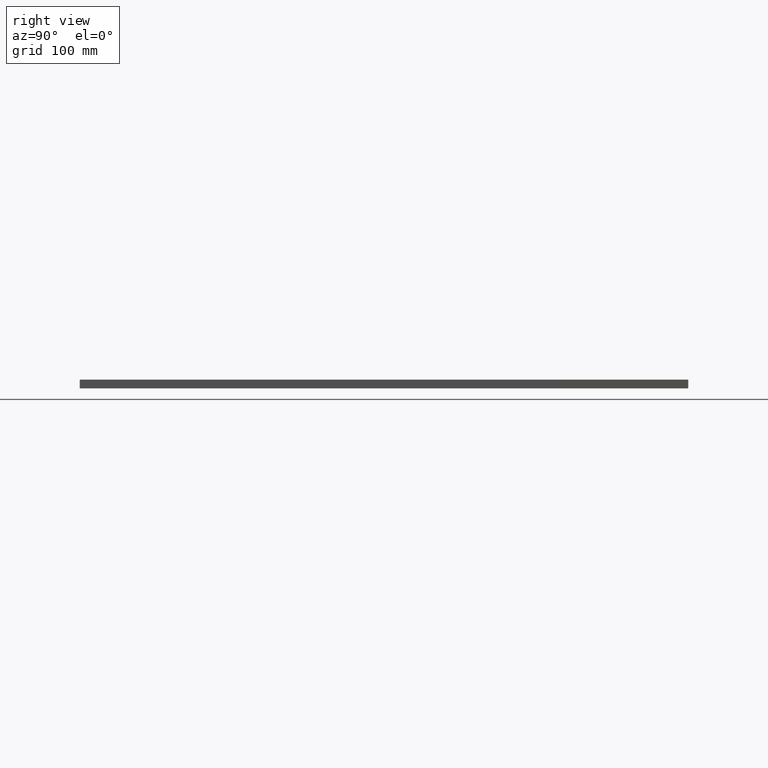
[diagram: clean part render]
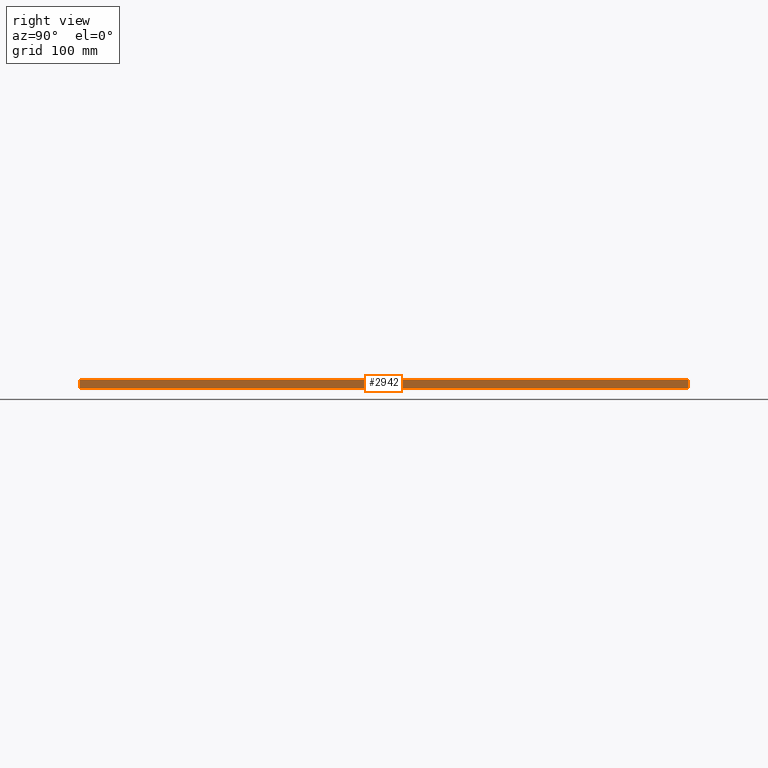
[diagram: same view with one face highlighted and labeled with its STEP entity id]
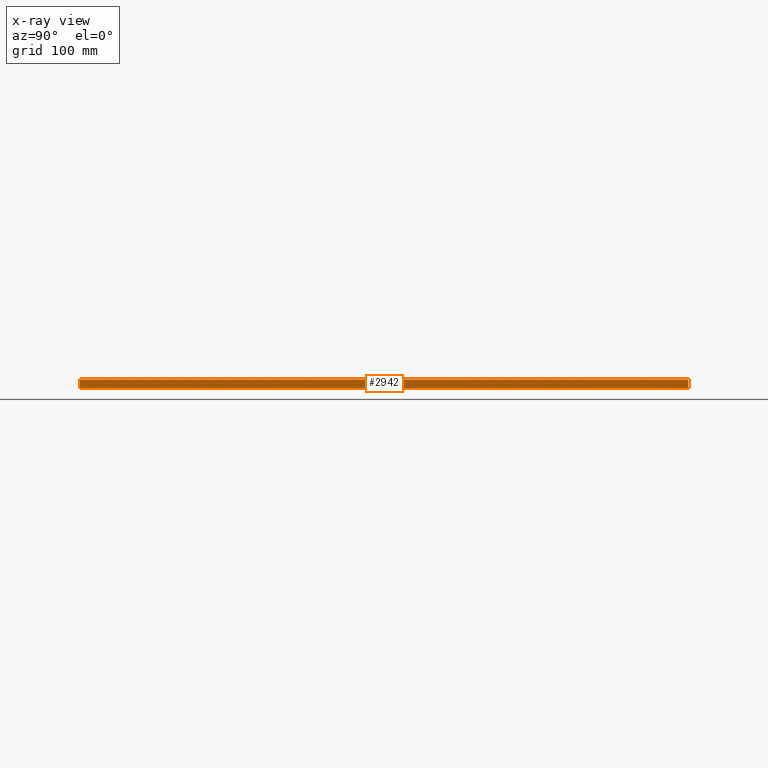
[diagram: x-ray of the same camera — body ghosted, the highlighted face saturated]
A machine part, right view. The second image highlights one B-rep face of the part: STEP entity #2942.
The next image is the same camera in x-ray: the body ghosted, the highlighted face saturated — about 0% of this face is hidden behind the body in this view.
In plain terms, the highlighted planar face has unit normal (-1, -0, 0).
Its self-contained STEP definition (entity closure, byte-faithful):
#1243 = ORIENTED_EDGE ( 'NONE', *, *, #53300, .T. ) ;
#2942 = ADVANCED_FACE ( 'NONE', ( #42168 ), #12495, .F. ) ;
#3609 = VECTOR ( 'NONE', #39229, 1000.000000000000000 ) ;
#3951 = CARTESIAN_POINT ( 'NONE',  ( 299.9999999999999400, 449.9999999999999400, 13.00000000000000000 ) ) ;
#4668 = VERTEX_POINT ( 'NONE', #23210 ) ;
#7494 = ORIENTED_EDGE ( 'NONE', *, *, #11601, .F. ) ;
#7677 = CARTESIAN_POINT ( 'NONE',  ( 299.9999999999999400, 449.9999999999999400, 13.00000000000000000 ) ) ;
#9300 = CARTESIAN_POINT ( 'NONE',  ( 299.9999999999999400, 449.9999999999999400, 0.0000000000000000000 ) ) ;
#9301 = EDGE_LOOP ( 'NONE', ( #47822, #7494, #21062, #1243 ) ) ;
#11601 = EDGE_CURVE ( 'NONE', #23273, #4668, #54887, .T. ) ;
#11738 = DIRECTION ( 'NONE',  ( -0.0000000000000000000, -0.0000000000000000000, -1.000000000000000000 ) ) ;
#11766 = CARTESIAN_POINT ( 'NONE',  ( 300.0000000000001100, -450.0000000000000600, 13.00000000000000000 ) ) ;
#12495 = PLANE ( 'NONE',  #35130 ) ;
#15003 = LINE ( 'NONE', #9300, #3609 ) ;
#16034 = EDGE_CURVE ( 'NONE', #26434, #23273, #18830, .T. ) ;
#18830 = LINE ( 'NONE', #7677, #48890 ) ;
#21062 = ORIENTED_EDGE ( 'NONE', *, *, #16034, .F. ) ;
#21124 = DIRECTION ( 'NONE',  ( -1.000000000000000000, -1.850371707708594800E-016, 0.0000000000000000000 ) ) ;
#23210 = CARTESIAN_POINT ( 'NONE',  ( 299.9999999999999400, 449.9999999999999400, 0.0000000000000000000 ) ) ;
#23273 = VERTEX_POINT ( 'NONE', #25400 ) ;
#25400 = CARTESIAN_POINT ( 'NONE',  ( 299.9999999999999400, 449.9999999999999400, 13.00000000000000000 ) ) ;
#25473 = EDGE_CURVE ( 'NONE', #54901, #4668, #15003, .T. ) ;
#26434 = VERTEX_POINT ( 'NONE', #11766 ) ;
#32813 = VECTOR ( 'NONE', #11738, 1000.000000000000000 ) ;
#33301 = DIRECTION ( 'NONE',  ( -1.850371707708594300E-016, 1.000000000000000000, -0.0000000000000000000 ) ) ;
#35130 = AXIS2_PLACEMENT_3D ( 'NONE', #46702, #21124, #51010 ) ;
#39229 = DIRECTION ( 'NONE',  ( -1.850371707708594300E-016, 1.000000000000000000, -0.0000000000000000000 ) ) ;
#41665 = CARTESIAN_POINT ( 'NONE',  ( 300.0000000000001100, -450.0000000000000600, 13.00000000000000000 ) ) ;
#42168 = FACE_OUTER_BOUND ( 'NONE', #9301, .T. ) ;
#42875 = LINE ( 'NONE', #41665, #32813 ) ;
#43467 = VECTOR ( 'NONE', #51062, 1000.000000000000000 ) ;
#46702 = CARTESIAN_POINT ( 'NONE',  ( 299.9999999999999400, 449.9999999999999400, 13.00000000000000000 ) ) ;
#47822 = ORIENTED_EDGE ( 'NONE', *, *, #25473, .T. ) ;
#48890 = VECTOR ( 'NONE', #33301, 1000.000000000000000 ) ;
#49121 = CARTESIAN_POINT ( 'NONE',  ( 300.0000000000001100, -450.0000000000000600, 0.0000000000000000000 ) ) ;
#51010 = DIRECTION ( 'NONE',  ( 1.850371707708594800E-016, -1.000000000000000000, 0.0000000000000000000 ) ) ;
#51062 = DIRECTION ( 'NONE',  ( -0.0000000000000000000, -0.0000000000000000000, -1.000000000000000000 ) ) ;
#53300 = EDGE_CURVE ( 'NONE', #26434, #54901, #42875, .T. ) ;
#54887 = LINE ( 'NONE', #3951, #43467 ) ;
#54901 = VERTEX_POINT ( 'NONE', #49121 ) ;